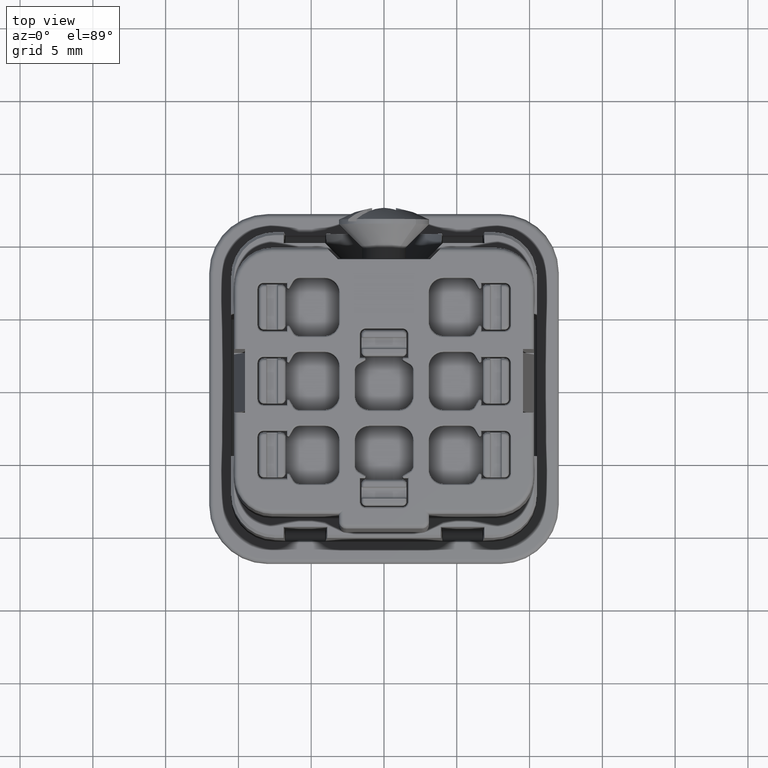
[diagram: clean part render]
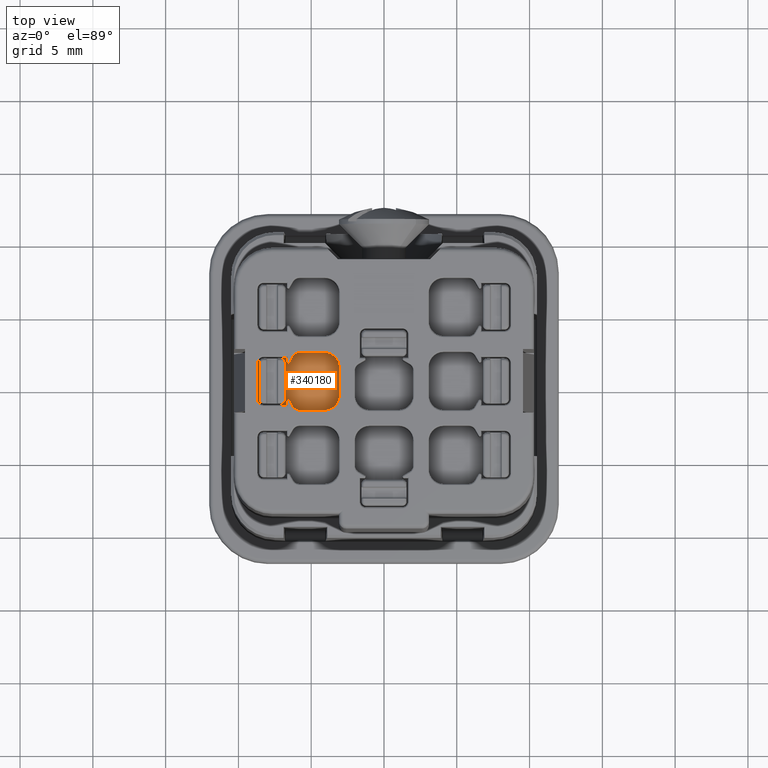
[diagram: same view with one face highlighted and labeled with its STEP entity id]
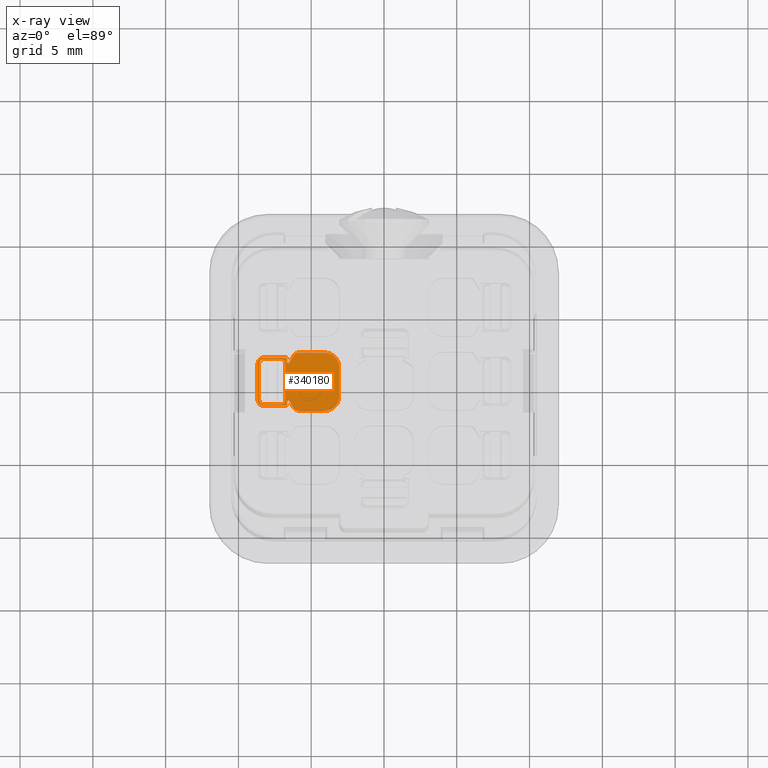
[diagram: x-ray of the same camera — body ghosted, the highlighted face saturated]
A machine part, top view. The second image highlights one B-rep face of the part: STEP entity #340180.
The next image is the same camera in x-ray: the body ghosted, the highlighted face saturated — about 0% of this face is hidden behind the body in this view.
In plain terms, the highlighted planar face has unit normal (-0, 0, 1).
Its self-contained STEP definition (entity closure, byte-faithful):
#51160=CARTESIAN_POINT('',(41.6042450000292,50.438878999996,
52.8999999999985));
#51170=VERTEX_POINT('',#51160);
#51320=CARTESIAN_POINT('',(41.6042450000292,50.1620840807409,
52.8999999999985));
#51330=VERTEX_POINT('',#51320);
#51360=CARTESIAN_POINT('',(41.6042450000292,40.2028942015763,
52.9000000000015));
#51370=DIRECTION('',(1.75695100810824E-25,1.,-2.96473160083123E-13));
#51380=VECTOR('',#51370,1.);
#51390=LINE('',#51360,#51380);
#51400=EDGE_CURVE('',#51330,#51170,#51390,.T.);
#73850=CARTESIAN_POINT('',(42.0372577019291,47.0388789999975,
52.8999999999996));
#73860=VERTEX_POINT('',#73850);
#74010=CARTESIAN_POINT('',(41.7908475404076,47.4656739192536,
52.8999999999994));
#74020=VERTEX_POINT('',#74010);
#74050=CARTESIAN_POINT('',(45.9840153654765,40.2028942015763,
52.9000000000028));
#74060=DIRECTION('',(0.500000000000256,-0.866025403784291,
4.04898337080795E-13));
#74070=VECTOR('',#74060,1.);
#74080=LINE('',#74050,#74070);
#74090=EDGE_CURVE('',#74020,#73860,#74080,.T.);
#78660=CARTESIAN_POINT('',(41.7908475404077,50.1120840807409,
52.8999999999986));
#78670=VERTEX_POINT('',#78660);
#78820=CARTESIAN_POINT('',(42.037257701928,50.5388789999958,
52.8999999999986));
#78830=VERTEX_POINT('',#78820);
#78860=CARTESIAN_POINT('',(36.0697740962248,40.2028942015763,
52.8999999999999));
#78870=DIRECTION('',(0.499999999999743,0.866025403784587,
-1.0857981180834E-13));
#78880=VECTOR('',#78870,1.);
#78890=LINE('',#78860,#78880);
#78900=EDGE_CURVE('',#78670,#78830,#78890,.T.);
#80030=CARTESIAN_POINT('',(41.6042450000292,47.4156739192536,
52.8999999999994));
#80040=VERTEX_POINT('',#80030);
#80070=CARTESIAN_POINT('',(41.7042450000292,47.4156739192536,
52.8999999999994));
#80080=DIRECTION('',(5.92613253258857E-13,-5.13121983806842E-13,-1.));
#80090=DIRECTION('',(-3.04082900468467E-25,-1.,5.13121983806842E-13));
#80100=AXIS2_PLACEMENT_3D('',#80070,#80080,#80090);
#80110=CIRCLE('',#80100,0.1);
#80120=EDGE_CURVE('',#80040,#74020,#80110,.T.);
#81180=CARTESIAN_POINT('',(39.6042450000001,40.2028942015763,
52.9000000000009));
#81190=DIRECTION('',(-1.75745587908758E-25,-1.,2.96473160083123E-13));
#81200=VECTOR('',#81190,1.);
#81210=LINE('',#81180,#81200);
#81220=CARTESIAN_POINT('',(39.6042450000001,50.0388789999961,
52.8999999999979));
#81230=VERTEX_POINT('',#81220);
#81240=CARTESIAN_POINT('',(39.6042450000001,47.5388789999961,
52.8999999999986));
#81250=VERTEX_POINT('',#81240);
#81260=EDGE_CURVE('',#81230,#81250,#81210,.T.);
#81970=CARTESIAN_POINT('',(39.2991534739769,50.438878999996,
52.8999999999978));
#81980=DIRECTION('',(1.,0.,2.9636213778066E-13));
#81990=VECTOR('',#81980,1.);
#82000=LINE('',#81970,#81990);
#82010=CARTESIAN_POINT('',(40.0042450000001,50.438878999996,
52.8999999999999));
#82020=VERTEX_POINT('',#82010);
#82030=EDGE_CURVE('',#82020,#51170,#82000,.T.);
#87140=CARTESIAN_POINT('',(41.6042450000292,40.2028942015763,
52.9000000000015));
#87150=DIRECTION('',(1.75695100810824E-25,1.,-2.96473160083123E-13));
#87160=VECTOR('',#87150,1.);
#87170=LINE('',#87140,#87160);
#103940=CARTESIAN_POINT('',(39.2991534739769,47.1388789999961,
52.8999999999988));
#103950=DIRECTION('',(-1.,0.,-2.9636213778066E-13));
#103960=VECTOR('',#103950,1.);
#103970=LINE('',#103940,#103960);
#103980=CARTESIAN_POINT('',(41.6042450000292,47.1388789999961,
52.8999999999995));
#103990=VERTEX_POINT('',#103980);
#104000=CARTESIAN_POINT('',(40.0042450000001,47.1388789999961,
52.8999999999999));
#104010=VERTEX_POINT('',#104000);
#104020=EDGE_CURVE('',#103990,#104010,#103970,.T.);
#104880=CARTESIAN_POINT('',(45.2042450000033,47.7888789999985,
52.9000000000003));
#104890=VERTEX_POINT('',#104880);
#104920=CARTESIAN_POINT('',(45.2042450000056,40.2028942015763,
52.9000000000026));
#104930=DIRECTION('',(-2.96239673100657E-13,1.,-2.9647316008321E-13));
#104940=VECTOR('',#104930,1.);
#104950=LINE('',#104920,#104940);
#104960=CARTESIAN_POINT('',(45.2042450000027,49.7888789999967,
52.8999999999997));
#104970=VERTEX_POINT('',#104960);
#104980=EDGE_CURVE('',#104890,#104970,#104950,.T.);
#107600=CARTESIAN_POINT('',(42.4702704038202,50.7888789999959,
52.8999999999988));
#107610=VERTEX_POINT('',#107600);
#107690=CARTESIAN_POINT('',(44.2042450000024,50.7888789999964,
52.8999999999994));
#107700=VERTEX_POINT('',#107690);
#107730=CARTESIAN_POINT('',(39.2991534739769,50.7888789999949,
52.8999999999977));
#107740=DIRECTION('',(-1.,-2.96239673100745E-13,-2.96362137780572E-13));
#107750=VECTOR('',#107740,1.);
#107760=LINE('',#107730,#107750);
#107770=EDGE_CURVE('',#107700,#107610,#107760,.T.);
#108030=CARTESIAN_POINT('',(41.7042450000292,50.1620840807409,
52.8999999999986));
#108040=DIRECTION('',(5.92613253258857E-13,5.13121983807544E-13,-1.));
#108050=DIRECTION('',(3.04082875816772E-25,-1.,-5.13121983807544E-13));
#108060=AXIS2_PLACEMENT_3D('',#108030,#108040,#108050);
#108070=CIRCLE('',#108060,0.1);
#108080=EDGE_CURVE('',#78670,#51330,#108070,.T.);
#136970=CARTESIAN_POINT('',(42.4702704038214,46.7888789999977,
52.8999999999997));
#136980=VERTEX_POINT('',#136970);
#137010=CARTESIAN_POINT('',(39.2991534739769,46.7888789999967,
52.8999999999989));
#137020=DIRECTION('',(-1.,-2.96239673100745E-13,-2.96362137780572E-13));
#137030=VECTOR('',#137020,1.);
#137040=LINE('',#137010,#137030);
#137050=CARTESIAN_POINT('',(44.2042450000036,46.7888789999982,52.9));
#137060=VERTEX_POINT('',#137050);
#137070=EDGE_CURVE('',#137060,#136980,#137040,.T.);
#153300=EDGE_CURVE('',#103990,#80040,#87170,.T.);
#154360=CARTESIAN_POINT('',(44.2042450000033,47.7888789999982,52.9));
#154370=DIRECTION('',(2.9636213778066E-13,-4.93038065763132E-32,-1.));
#154380=DIRECTION('',(-1.,-5.92479346201491E-13,-2.9636213778066E-13));
#154390=AXIS2_PLACEMENT_3D('',#154360,#154370,#154380);
#154400=CIRCLE('',#154390,1.);
#154410=EDGE_CURVE('',#104890,#137060,#154400,.T.);
#157360=CARTESIAN_POINT('',(40.0042450000001,47.5388789999961,
52.8999999999989));
#157370=DIRECTION('',(-5.92835297863782E-13,-1.81684527233714E-29,1.));
#157380=DIRECTION('',(-1.,-1.23258475685441E-32,-5.92835297863782E-13));
#157390=AXIS2_PLACEMENT_3D('',#157360,#157370,#157380);
#157400=CIRCLE('',#157390,0.4);
#157410=EDGE_CURVE('',#81250,#104010,#157400,.T.);
#159440=CARTESIAN_POINT('',(44.2042450000027,49.7888789999964,
52.8999999999994));
#159450=DIRECTION('',(-2.9636213778066E-13,-2.46519032881566E-32,1.));
#159460=DIRECTION('',(-1.,3.29028070031977E-29,-2.9636213778066E-13));
#159470=AXIS2_PLACEMENT_3D('',#159440,#159450,#159460);
#159480=CIRCLE('',#159470,1.);
#159490=EDGE_CURVE('',#104970,#107700,#159480,.T.);
#283690=CARTESIAN_POINT('',(42.4702704038203,50.2888789999959,
52.8999999999988));
#283700=DIRECTION('',(2.9636213778066E-13,2.39123461895119E-30,-1.));
#283710=DIRECTION('',(-1.,3.29028070031977E-29,-2.9636213778066E-13));
#283720=AXIS2_PLACEMENT_3D('',#283690,#283700,#283710);
#283730=CIRCLE('',#283720,0.5);
#283740=EDGE_CURVE('',#78830,#107610,#283730,.T.);
#328140=CARTESIAN_POINT('',(40.0042450000001,50.0388789999961,
52.8999999999981));
#328150=DIRECTION('',(-5.92835297863782E-13,-1.81684527233714E-29,1.));
#328160=DIRECTION('',(-1.,-1.23258475685441E-32,-5.92835297863782E-13));
#328170=AXIS2_PLACEMENT_3D('',#328140,#328150,#328160);
#328180=CIRCLE('',#328170,0.4);
#328190=EDGE_CURVE('',#82020,#81230,#328180,.T.);
#328570=CARTESIAN_POINT('',(42.4702704038212,47.2888789999977,
52.8999999999997));
#328580=DIRECTION('',(-2.9636213778066E-13,2.41588652223935E-30,1.));
#328590=DIRECTION('',(-1.,-5.92479346201491E-13,-2.9636213778066E-13));
#328600=AXIS2_PLACEMENT_3D('',#328570,#328580,#328590);
#328610=CIRCLE('',#328600,0.5);
#328620=EDGE_CURVE('',#73860,#136980,#328610,.T.);
#334330=CARTESIAN_POINT('',(48.2842450000015,52.388879,52.8999999999999)
);
#334340=DIRECTION('',(-2.9636213778066E-13,2.96473160083123E-13,1.));
#334350=DIRECTION('',(1.,0.,2.9636213778066E-13));
#334360=AXIS2_PLACEMENT_3D('',#334330,#334340,#334350);
#334370=PLANE('',#334360);
#339280=CARTESIAN_POINT('',(41.2042450000001,50.0388789999992,
52.8999999999985));
#339290=DIRECTION('',(-1.11022302462516E-16,-1.11022302462516E-16,-1.));
#339300=DIRECTION('',(1.,-1.23259516440783E-32,-1.11022302462516E-16));
#339310=AXIS2_PLACEMENT_3D('',#339280,#339290,#339300);
#339320=CIRCLE('',#339310,0.3);
#339330=CARTESIAN_POINT('',(41.2042450000001,50.3388789999992,
52.8999999999984));
#339340=VERTEX_POINT('',#339330);
#339350=CARTESIAN_POINT('',(41.5042450000001,50.0388789999992,
52.8999999999986));
#339360=VERTEX_POINT('',#339350);
#339370=EDGE_CURVE('',#339340,#339360,#339320,.T.);
#339380=ORIENTED_EDGE('',*,*,#339370,.T.);
#339390=CARTESIAN_POINT('',(39.2991534739769,50.3388789999992,
52.8999999999978));
#339400=DIRECTION('',(-1.,-2.52435489670724E-29,-2.9636213778066E-13));
#339410=VECTOR('',#339400,1.);
#339420=LINE('',#339390,#339410);
#339430=CARTESIAN_POINT('',(40.004244999999,50.3388789999992,
52.899999999998));
#339440=VERTEX_POINT('',#339430);
#339450=EDGE_CURVE('',#339340,#339440,#339420,.T.);
#339460=ORIENTED_EDGE('',*,*,#339450,.F.);
#339470=CARTESIAN_POINT('',(40.004244999999,50.0388789999992,
52.8999999999981));
#339480=DIRECTION('',(1.11022302462516E-16,1.11022302462516E-16,1.));
#339490=DIRECTION('',(-1.,1.23259516440783E-32,1.11022302462516E-16));
#339500=AXIS2_PLACEMENT_3D('',#339470,#339480,#339490);
#339510=CIRCLE('',#339500,0.3);
#339520=CARTESIAN_POINT('',(39.704244999999,50.0388789999992,
52.899999999998));
#339530=VERTEX_POINT('',#339520);
#339540=EDGE_CURVE('',#339440,#339530,#339510,.T.);
#339550=ORIENTED_EDGE('',*,*,#339540,.F.);
#339560=CARTESIAN_POINT('',(39.704244999999,40.2028942015763,
52.9000000000009));
#339570=DIRECTION('',(2.52435489670724E-29,-1.,2.96473160083123E-13));
#339580=VECTOR('',#339570,1.);
#339590=LINE('',#339560,#339580);
#339600=CARTESIAN_POINT('',(39.704244999999,47.5388789999992,
52.8999999999988));
#339610=VERTEX_POINT('',#339600);
#339620=EDGE_CURVE('',#339530,#339610,#339590,.T.);
#339630=ORIENTED_EDGE('',*,*,#339620,.F.);
#339640=CARTESIAN_POINT('',(40.004244999999,47.5388789999992,
52.8999999999989));
#339650=DIRECTION('',(1.11022302462516E-16,1.11022302462516E-16,1.));
#339660=DIRECTION('',(-1.,1.23259516440783E-32,1.11022302462516E-16));
#339670=AXIS2_PLACEMENT_3D('',#339640,#339650,#339660);
#339680=CIRCLE('',#339670,0.3);
#339690=CARTESIAN_POINT('',(40.004244999999,47.2388789999992,
52.8999999999989));
#339700=VERTEX_POINT('',#339690);
#339710=EDGE_CURVE('',#339610,#339700,#339680,.T.);
#339720=ORIENTED_EDGE('',*,*,#339710,.F.);
#339730=CARTESIAN_POINT('',(39.2991534739769,47.2388789999992,
52.8999999999987));
#339740=DIRECTION('',(-1.,-2.52435489670724E-29,-2.9636213778066E-13));
#339750=VECTOR('',#339740,1.);
#339760=LINE('',#339730,#339750);
#339770=CARTESIAN_POINT('',(41.2042450000001,47.2388789999992,
52.8999999999992));
#339780=VERTEX_POINT('',#339770);
#339790=EDGE_CURVE('',#339780,#339700,#339760,.T.);
#339800=ORIENTED_EDGE('',*,*,#339790,.T.);
#339810=CARTESIAN_POINT('',(41.2042450000001,47.5388789999992,
52.8999999999992));
#339820=DIRECTION('',(-1.11022302462516E-16,-1.11022302462516E-16,-1.));
#339830=DIRECTION('',(1.,-1.23259516440783E-32,-1.11022302462516E-16));
#339840=AXIS2_PLACEMENT_3D('',#339810,#339820,#339830);
#339850=CIRCLE('',#339840,0.3);
#339860=CARTESIAN_POINT('',(41.5042450000001,47.5388789999992,
52.8999999999993));
#339870=VERTEX_POINT('',#339860);
#339880=EDGE_CURVE('',#339870,#339780,#339850,.T.);
#339890=ORIENTED_EDGE('',*,*,#339880,.T.);
#339900=CARTESIAN_POINT('',(41.5042450000001,40.2028942015763,
52.9000000000015));
#339910=DIRECTION('',(-2.52435489670724E-29,1.,-2.96473160083123E-13));
#339920=VECTOR('',#339910,1.);
#339930=LINE('',#339900,#339920);
#339940=EDGE_CURVE('',#339870,#339360,#339930,.T.);
#339950=ORIENTED_EDGE('',*,*,#339940,.F.);
#339960=EDGE_LOOP('',(#339950,#339890,#339800,#339720,#339630,#339550,
#339460,#339380));
#339970=FACE_BOUND('',#339960,.T.);
#339980=ORIENTED_EDGE('',*,*,#157410,.T.);
#339990=ORIENTED_EDGE('',*,*,#81260,.T.);
#340000=ORIENTED_EDGE('',*,*,#328190,.T.);
#340010=ORIENTED_EDGE('',*,*,#82030,.F.);
#340020=ORIENTED_EDGE('',*,*,#51400,.T.);
#340030=ORIENTED_EDGE('',*,*,#108080,.T.);
#340040=ORIENTED_EDGE('',*,*,#78900,.F.);
#340050=ORIENTED_EDGE('',*,*,#283740,.F.);
#340060=ORIENTED_EDGE('',*,*,#107770,.T.);
#340070=ORIENTED_EDGE('',*,*,#159490,.T.);
#340080=ORIENTED_EDGE('',*,*,#104980,.T.);
#340090=ORIENTED_EDGE('',*,*,#154410,.F.);
#340100=ORIENTED_EDGE('',*,*,#137070,.F.);
#340110=ORIENTED_EDGE('',*,*,#328620,.T.);
#340120=ORIENTED_EDGE('',*,*,#74090,.T.);
#340130=ORIENTED_EDGE('',*,*,#80120,.T.);
#340140=ORIENTED_EDGE('',*,*,#153300,.T.);
#340150=ORIENTED_EDGE('',*,*,#104020,.F.);
#340160=EDGE_LOOP('',(#340150,#340140,#340130,#340120,#340110,#340100,
#340090,#340080,#340070,#340060,#340050,#340040,#340030,#340020,#340010,
#340000,#339990,#339980));
#340170=FACE_OUTER_BOUND('',#340160,.T.);
#340180=ADVANCED_FACE('',(#339970,#340170),#334370,.T.);